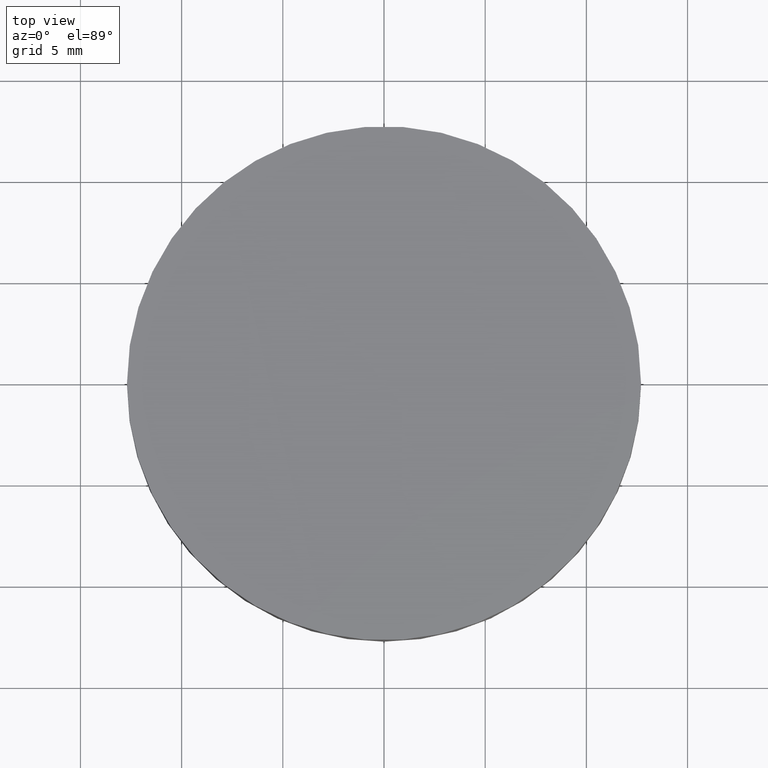
[diagram: clean part render]
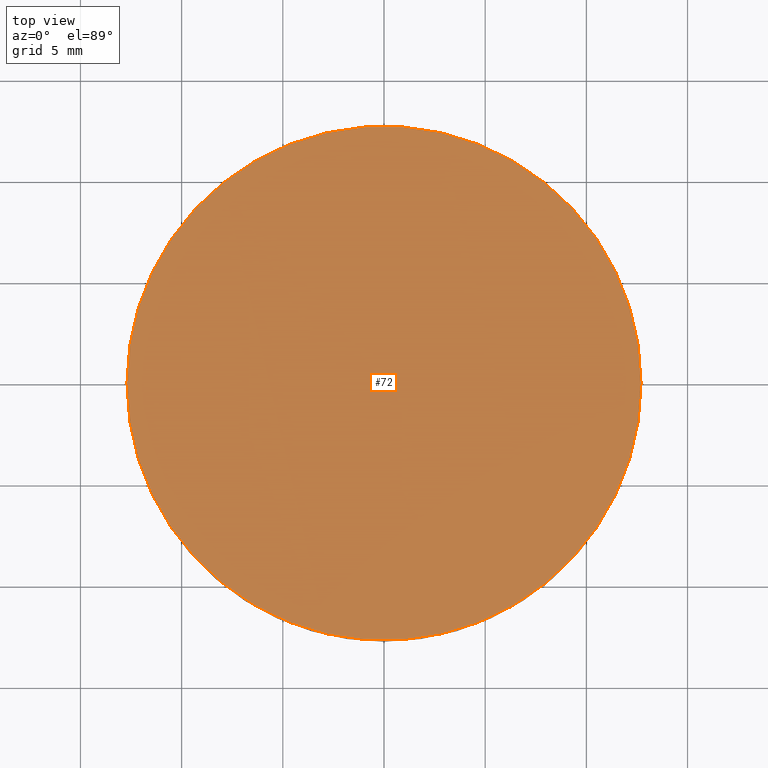
[diagram: same view with one face highlighted and labeled with its STEP entity id]
A machine part, top view. The second image highlights one B-rep face of the part: STEP entity #72.
In plain terms, the highlighted planar face has unit normal (0, 0, 1).
Its self-contained STEP definition (entity closure, byte-faithful):
#1 = ORIENTED_EDGE ( 'NONE', *, *, #114, .F. ) ;
#4 = CARTESIAN_POINT ( 'NONE',  ( 0.0000000000000000000, 26.11199999999999800, 3.899999999999999900 ) ) ;
#5 = DIRECTION ( 'NONE',  ( 0.0000000000000000000, 0.0000000000000000000, 1.000000000000000000 ) ) ;
#16 = VERTEX_POINT ( 'NONE', #94 ) ;
#27 = DIRECTION ( 'NONE',  ( 1.000000000000000000, 0.0000000000000000000, -0.0000000000000000000 ) ) ;
#28 = AXIS2_PLACEMENT_3D ( 'NONE', #105, #64, #210 ) ;
#30 = CIRCLE ( 'NONE', #80, 12.69999999999999900 ) ;
#64 = DIRECTION ( 'NONE',  ( -0.0000000000000000000, -0.0000000000000000000, -1.000000000000000000 ) ) ;
#72 = ADVANCED_FACE ( 'NONE', ( #133 ), #102, .T. ) ;
#80 = AXIS2_PLACEMENT_3D ( 'NONE', #106, #111, #83 ) ;
#82 = CIRCLE ( 'NONE', #28, 12.69999999999999900 ) ;
#83 = DIRECTION ( 'NONE',  ( 1.000000000000000000, 0.0000000000000000000, 0.0000000000000000000 ) ) ;
#94 = CARTESIAN_POINT ( 'NONE',  ( 12.69999999999999900, 2.442490654175340100E-015, 3.899999999999999900 ) ) ;
#102 = PLANE ( 'NONE',  #235 ) ;
#105 = CARTESIAN_POINT ( 'NONE',  ( 4.996003610813200500E-016, 2.442490654175340100E-015, 3.899999999999999900 ) ) ;
#106 = CARTESIAN_POINT ( 'NONE',  ( 4.996003610813200500E-016, 2.442490654175340100E-015, 3.899999999999999900 ) ) ;
#109 = VERTEX_POINT ( 'NONE', #223 ) ;
#111 = DIRECTION ( 'NONE',  ( -0.0000000000000000000, -0.0000000000000000000, -1.000000000000000000 ) ) ;
#112 = EDGE_LOOP ( 'NONE', ( #1, #129 ) ) ;
#114 = EDGE_CURVE ( 'NONE', #16, #109, #82, .T. ) ;
#129 = ORIENTED_EDGE ( 'NONE', *, *, #140, .F. ) ;
#133 = FACE_OUTER_BOUND ( 'NONE', #112, .T. ) ;
#140 = EDGE_CURVE ( 'NONE', #109, #16, #30, .T. ) ;
#210 = DIRECTION ( 'NONE',  ( 1.000000000000000000, 0.0000000000000000000, 0.0000000000000000000 ) ) ;
#223 = CARTESIAN_POINT ( 'NONE',  ( -12.69999999999999900, 3.997792089092478900E-015, 3.899999999999999900 ) ) ;
#235 = AXIS2_PLACEMENT_3D ( 'NONE', #4, #5, #27 ) ;